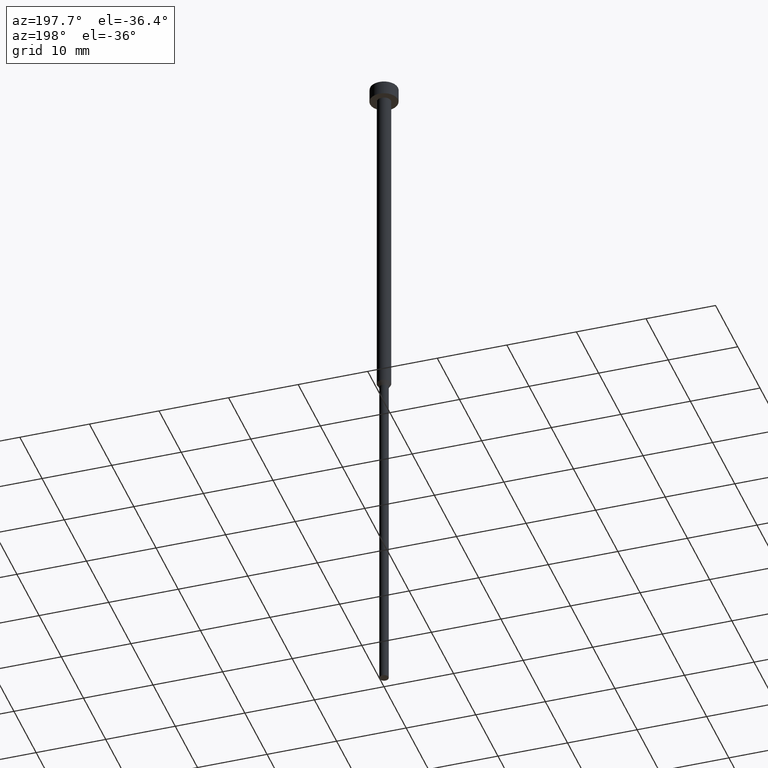
[diagram: clean part render]
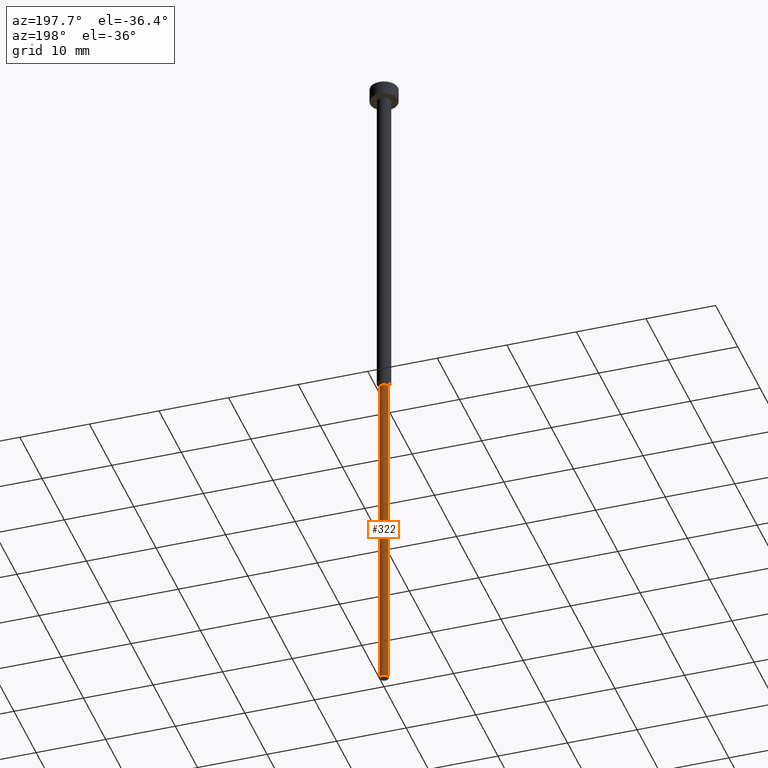
[diagram: same view with one face highlighted and labeled with its STEP entity id]
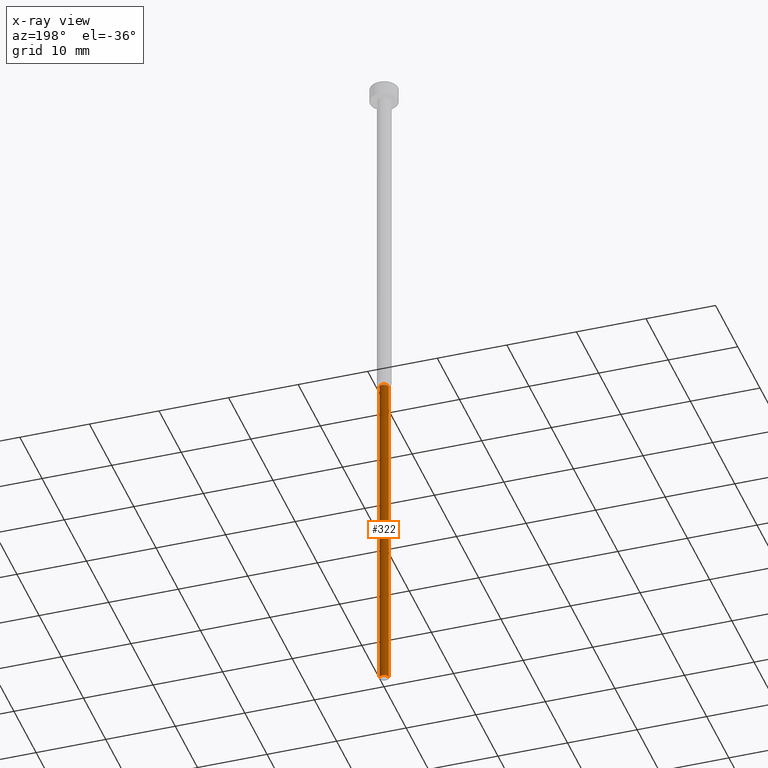
[diagram: x-ray of the same camera — body ghosted, the highlighted face saturated]
A machine part, auxiliary view. The second image highlights one B-rep face of the part: STEP entity #322.
The next image is the same camera in x-ray: the body ghosted, the highlighted face saturated — about 0% of this face is hidden behind the body in this view.
In plain terms, the highlighted cylindrical surface (edge-blend (fillet) strip) has radius 0.65 mm, axis along (-0, -0, 1).
Its self-contained STEP definition (entity closure, byte-faithful):
#8 = EDGE_CURVE ( 'NONE', #11, #106, #150, .T. ) ;
#11 = VERTEX_POINT ( 'NONE', #62 ) ;
#15 = EDGE_CURVE ( 'NONE', #165, #106, #226, .T. ) ;
#31 = CARTESIAN_POINT ( 'NONE',  ( 0.000000000000000000, 0.000000000000000000, -100.0000000000000000 ) ) ;
#46 = ORIENTED_EDGE ( 'NONE', *, *, #8, .T. ) ;
#50 = VERTEX_POINT ( 'NONE', #91 ) ;
#52 = AXIS2_PLACEMENT_3D ( 'NONE', #31, #138, #329 ) ;
#58 = FACE_OUTER_BOUND ( 'NONE', #355, .T. ) ;
#59 = ORIENTED_EDGE ( 'NONE', *, *, #15, .F. ) ;
#62 = CARTESIAN_POINT ( 'NONE',  ( -0.6500000000000000222, 7.960204194457795477E-17, -100.0000000000000000 ) ) ;
#67 = CARTESIAN_POINT ( 'NONE',  ( -0.6500000000000000222, 7.960204194457795477E-17, 0.000000000000000000 ) ) ;
#83 = AXIS2_PLACEMENT_3D ( 'NONE', #171, #246, #220 ) ;
#86 = AXIS2_PLACEMENT_3D ( 'NONE', #88, #172, #237 ) ;
#88 = CARTESIAN_POINT ( 'NONE',  ( 0.000000000000000000, 0.000000000000000000, -50.60621778264911086 ) ) ;
#91 = CARTESIAN_POINT ( 'NONE',  ( 0.6500000000000000222, 0.000000000000000000, -100.0000000000000000 ) ) ;
#97 = CARTESIAN_POINT ( 'NONE',  ( -0.6500000000000000222, 7.960204194457795477E-17, -50.60621778264911086 ) ) ;
#102 = LINE ( 'NONE', #354, #288 ) ;
#106 = VERTEX_POINT ( 'NONE', #97 ) ;
#128 = CIRCLE ( 'NONE', #52, 0.6500000000000000222 ) ;
#138 = DIRECTION ( 'NONE',  ( -0.000000000000000000, -0.000000000000000000, 1.000000000000000000 ) ) ;
#150 = LINE ( 'NONE', #67, #350 ) ;
#155 = CARTESIAN_POINT ( 'NONE',  ( 0.6500000000000000222, 0.000000000000000000, -50.60621778264911086 ) ) ;
#165 = VERTEX_POINT ( 'NONE', #155 ) ;
#171 = CARTESIAN_POINT ( 'NONE',  ( 0.000000000000000000, 0.000000000000000000, 0.000000000000000000 ) ) ;
#172 = DIRECTION ( 'NONE',  ( -0.000000000000000000, -0.000000000000000000, 1.000000000000000000 ) ) ;
#194 = ORIENTED_EDGE ( 'NONE', *, *, #244, .F. ) ;
#220 = DIRECTION ( 'NONE',  ( 1.000000000000000000, 0.000000000000000000, 0.000000000000000000 ) ) ;
#226 = CIRCLE ( 'NONE', #86, 0.6500000000000000222 ) ;
#229 = DIRECTION ( 'NONE',  ( -0.000000000000000000, -0.000000000000000000, 1.000000000000000000 ) ) ;
#237 = DIRECTION ( 'NONE',  ( 1.000000000000000000, 0.000000000000000000, 0.000000000000000000 ) ) ;
#244 = EDGE_CURVE ( 'NONE', #50, #165, #102, .T. ) ;
#246 = DIRECTION ( 'NONE',  ( -0.000000000000000000, -0.000000000000000000, 1.000000000000000000 ) ) ;
#277 = ORIENTED_EDGE ( 'NONE', *, *, #326, .T. ) ;
#288 = VECTOR ( 'NONE', #229, 1000.000000000000000 ) ;
#310 = CYLINDRICAL_SURFACE ( 'NONE', #83, 0.6500000000000000222 ) ;
#315 = DIRECTION ( 'NONE',  ( -0.000000000000000000, -0.000000000000000000, 1.000000000000000000 ) ) ;
#322 = ADVANCED_FACE ( 'NONE', ( #58 ), #310, .T. ) ;
#326 = EDGE_CURVE ( 'NONE', #50, #11, #128, .T. ) ;
#329 = DIRECTION ( 'NONE',  ( 1.000000000000000000, 0.000000000000000000, 0.000000000000000000 ) ) ;
#350 = VECTOR ( 'NONE', #315, 1000.000000000000000 ) ;
#354 = CARTESIAN_POINT ( 'NONE',  ( 0.6500000000000000222, 0.000000000000000000, 0.000000000000000000 ) ) ;
#355 = EDGE_LOOP ( 'NONE', ( #277, #46, #59, #194 ) ) ;